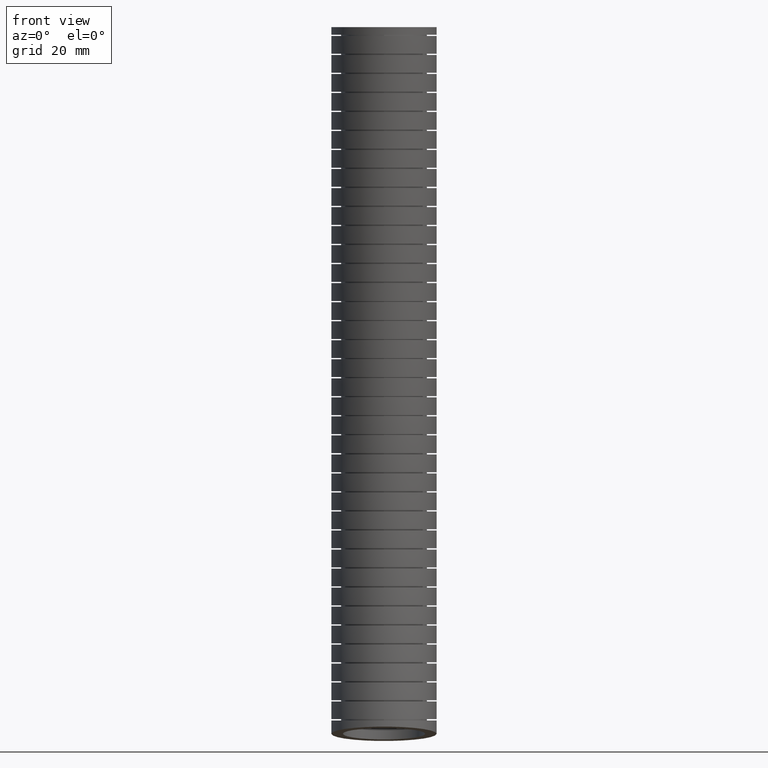
[diagram: clean part render]
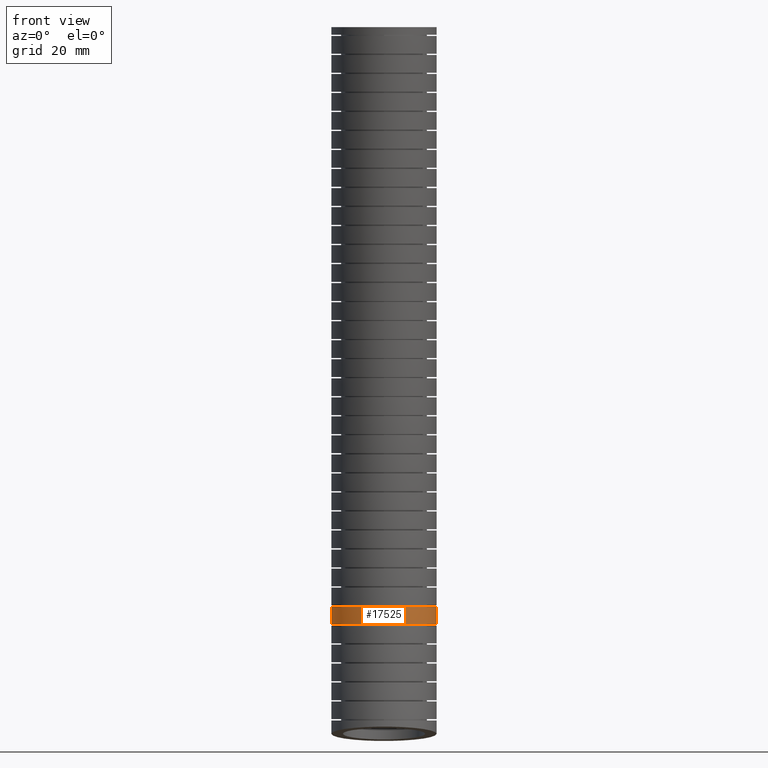
[diagram: same view with one face highlighted and labeled with its STEP entity id]
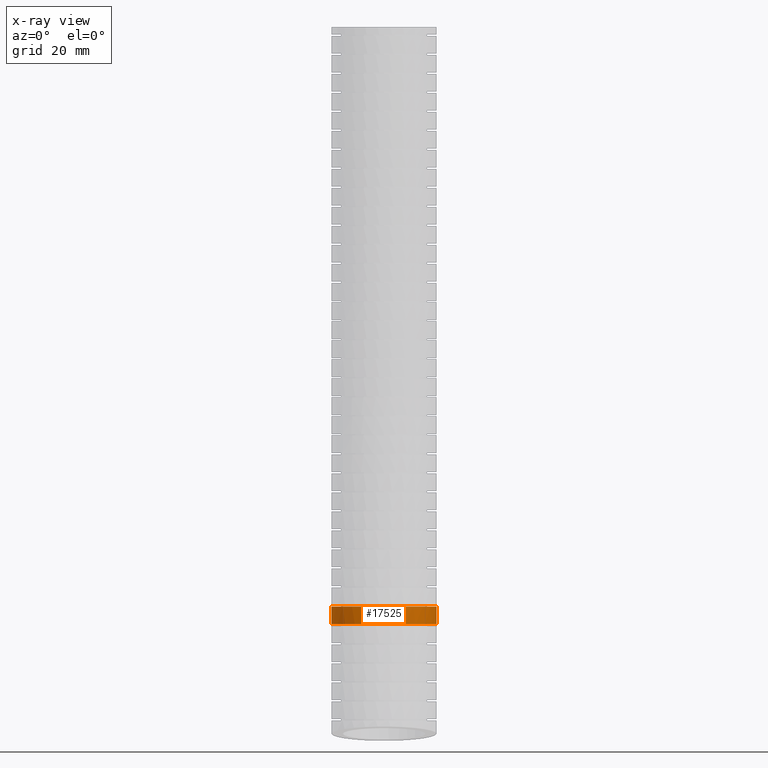
[diagram: x-ray of the same camera — body ghosted, the highlighted face saturated]
A machine part, front view. The second image highlights one B-rep face of the part: STEP entity #17525.
The next image is the same camera in x-ray: the body ghosted, the highlighted face saturated — about 0% of this face is hidden behind the body in this view.
In plain terms, the highlighted face is a freeform B-spline surface patch.
Its self-contained STEP definition (entity closure, byte-faithful):
#16746 = EDGE_CURVE ( 'NONE', #17440, #16922, #16773, .T. ) ;
#16752 = EDGE_CURVE ( 'NONE', #17075, #16922, #16767, .T. ) ;
#16764 = CARTESIAN_POINT ( 'NONE',  ( -0.4150000000000000900, 0.02722070567001201900, -4.707395241627940800 ) ) ;
#16765 = CARTESIAN_POINT ( 'NONE',  ( -0.4150000000000000900, 0.04081701023468725700, -4.707395241627942500 ) ) ;
#16766 = CARTESIAN_POINT ( 'NONE',  ( -0.4150000000000000900, 0.04081701023468725700, -4.707395241627942500 ) ) ;
#16767 = B_SPLINE_CURVE_WITH_KNOTS ( 'NONE', 3,
 ( #16765, #16764, #16830, #16829, #16828, #16827, #16826, #16825, #16824, #16823, #16822, #16821, #16820, #16819, #16818, #16817, #16816, #16815, #16814, #16813, #16812, #16811, #16810, #16809, #16808, #16807, #16806, #16805, #16804, #16803, #16802, #16801, #16800, #16798, #16797, #16796, #16795, #16794, #16793, #16792, #16791, #16790, #16789, #16788, #16787, #16786, #16785, #16784 ),
 .UNSPECIFIED., .F., .F.,
 ( 4, 2, 2, 2, 2, 2, 2, 2, 2, 2, 2, 1, 2, 2, 2, 2, 2, 2, 2, 2, 2, 2, 1, 2, 4 ),
 ( 0.03331670428760088300, 0.03435795259530502500, 0.03539920090300915900, 0.03748169751841744200, 0.03956419413382572500, 0.04060544244152986000, 0.04164669074923400100, 0.04372918736464229100, 0.04581168398005057400, 0.04789418059545885000, 0.04893542890316299200, 0.04997667721086713300, 0.05101792551857127500, 0.05205917382627540900, 0.05414167044168369900, 0.05518291874938784100, 0.05622416705709197500, 0.05830666367250025200, 0.05934791198020439300, 0.06038916028790852800, 0.06247165690331681100, 0.06351290521102094500, 0.06455415351872509400, 0.06559540182642922800, 0.06663665013413336300 ),
 .UNSPECIFIED. ) ;
#16768 = CARTESIAN_POINT ( 'NONE',  ( 0.4150000000000000900, 0.04081701025929175600, -4.707395241436215000 ) ) ;
#16769 = CARTESIAN_POINT ( 'NONE',  ( 0.4150000000000000900, 0.04081701025929175600, -4.707395241436215000 ) ) ;
#16770 = CARTESIAN_POINT ( 'NONE',  ( 0.4150000000000000900, 0.04380503960033631900, -4.660827499190193500 ) ) ;
#16771 = CARTESIAN_POINT ( 'NONE',  ( 0.4150000000000000900, 0.04664156438956276000, -4.614253428303644700 ) ) ;
#16772 = CARTESIAN_POINT ( 'NONE',  ( 0.4150000000000000900, 0.04933109456026307800, -4.567673217165008700 ) ) ;
#16773 = B_SPLINE_CURVE_WITH_KNOTS ( 'NONE', 3,
 ( #16772, #16771, #16770, #16769 ),
 .UNSPECIFIED., .F., .F.,
 ( 4, 4 ),
 ( 0.8194947224877287000, 0.8446376607462574600 ),
 .UNSPECIFIED. ) ;
#16784 = CARTESIAN_POINT ( 'NONE',  ( 0.4150000000000000900, 0.04081701025929175600, -4.707395241436215000 ) ) ;
#16785 = CARTESIAN_POINT ( 'NONE',  ( 0.4150000000000002000, 0.02710499446350850600, -4.707395241436215900 ) ) ;
#16786 = CARTESIAN_POINT ( 'NONE',  ( 0.4143165437554263100, 0.01338410576498883100, -4.707395241627943400 ) ) ;
#16787 = CARTESIAN_POINT ( 'NONE',  ( 0.4116329066317014300, -0.01369555393711079400, -4.707395241627943400 ) ) ;
#16788 = CARTESIAN_POINT ( 'NONE',  ( 0.4076373896446693900, -0.04049150982764403900, -4.707395241627936300 ) ) ;
#16789 = CARTESIAN_POINT ( 'NONE',  ( 0.4010678163226993900, -0.06673080682445253800, -4.707395241627944300 ) ) ;
#16790 = CARTESIAN_POINT ( 'NONE',  ( 0.3931987917848692200, -0.09268908779746579100, -4.707395241627945200 ) ) ;
#16791 = CARTESIAN_POINT ( 'NONE',  ( 0.3885977988833834700, -0.1055677975372303300, -4.707395241627940800 ) ) ;
#16792 = CARTESIAN_POINT ( 'NONE',  ( 0.3728804056647402900, -0.1435008583150359500, -4.707395241627940800 ) ) ;
#16793 = CARTESIAN_POINT ( 'NONE',  ( 0.3600895573165869300, -0.1673711514206137300, -4.707395241627942500 ) ) ;
#16794 = CARTESIAN_POINT ( 'NONE',  ( 0.3375530684191198100, -0.2011217513192723500, -4.707395241627942500 ) ) ;
#16795 = CARTESIAN_POINT ( 'NONE',  ( 0.3294784510129268300, -0.2120269724490107500, -4.707395241627942500 ) ) ;
#16796 = CARTESIAN_POINT ( 'NONE',  ( 0.3121746425241153600, -0.2331292622699205100, -4.707395241627941700 ) ) ;
#16797 = CARTESIAN_POINT ( 'NONE',  ( 0.3029407689834010000, -0.2433164848990953000, -4.707395241627944300 ) ) ;
#16798 = CARTESIAN_POINT ( 'NONE',  ( 0.2741134331435121100, -0.2721388213077581300, -4.707395241627945200 ) ) ;
#16799 = ORIENTED_EDGE ( 'NONE', *, *, #16746, .F. ) ;
#16800 = CARTESIAN_POINT ( 'NONE',  ( 0.2532174829395305600, -0.2892936259063709200, -4.707395241627944300 ) ) ;
#16801 = CARTESIAN_POINT ( 'NONE',  ( 0.2193619528370025200, -0.3119418239876972600, -4.707395241627942500 ) ) ;
#16802 = CARTESIAN_POINT ( 'NONE',  ( 0.2075916502005595300, -0.3190061518216849600, -4.707395241627943400 ) ) ;
#16803 = CARTESIAN_POINT ( 'NONE',  ( 0.1834972992540061800, -0.3318859711662928100, -4.707395241627941700 ) ) ;
#16804 = CARTESIAN_POINT ( 'NONE',  ( 0.1712193606188991400, -0.3376862111018420500, -4.707395241627941700 ) ) ;
#16805 = CARTESIAN_POINT ( 'NONE',  ( 0.1337124507286304400, -0.3532211311476167700, -4.707395241627941700 ) ) ;
#16806 = CARTESIAN_POINT ( 'NONE',  ( 0.1078168497238341400, -0.3611079301962410400, -4.707395241627943400 ) ) ;
#16807 = CARTESIAN_POINT ( 'NONE',  ( 0.06759527642263112000, -0.3691178708836377900, -4.707395241627943400 ) ) ;
#16808 = CARTESIAN_POINT ( 'NONE',  ( 0.05403288321307180700, -0.3711242071582415100, -4.707395241627943400 ) ) ;
#16809 = CARTESIAN_POINT ( 'NONE',  ( 0.02702024113260861500, -0.3737765257952890300, -4.707395241627946100 ) ) ;
#16810 = CARTESIAN_POINT ( 'NONE',  ( -4.202475531460690500E-006, -0.3750945538268633000, -4.707395241627947000 ) ) ;
#16811 = CARTESIAN_POINT ( 'NONE',  ( -0.02705197288449128300, -0.3737752342170245200, -4.707395241627943400 ) ) ;
#16812 = CARTESIAN_POINT ( 'NONE',  ( -0.05411160654095361500, -0.3711146459066699300, -4.707395241627943400 ) ) ;
#16813 = CARTESIAN_POINT ( 'NONE',  ( -0.06772164466586964900, -0.3690958297575522300, -4.707395241627941700 ) ) ;
#16814 = CARTESIAN_POINT ( 'NONE',  ( -0.1078392918606110600, -0.3610971796376662400, -4.707395241627940800 ) ) ;
#16815 = CARTESIAN_POINT ( 'NONE',  ( -0.1337169904833151500, -0.3532213612287966000, -4.707395241627942500 ) ) ;
#16816 = CARTESIAN_POINT ( 'NONE',  ( -0.1837723251406569700, -0.3324848084149223400, -4.707395241627942500 ) ) ;
#16817 = CARTESIAN_POINT ( 'NONE',  ( -0.2081495075148933900, -0.3194460635672153900, -4.707395241627943400 ) ) ;
#16818 = CARTESIAN_POINT ( 'NONE',  ( -0.2532187200150217700, -0.2892892975667433200, -4.707395241627944300 ) ) ;
#16819 = CARTESIAN_POINT ( 'NONE',  ( -0.2741219599552196000, -0.2721358188926998300, -4.707395241627942500 ) ) ;
#16820 = CARTESIAN_POINT ( 'NONE',  ( -0.3029997377236192100, -0.2432547558474783800, -4.707395241627943400 ) ) ;
#16821 = CARTESIAN_POINT ( 'NONE',  ( -0.3122429244307228200, -0.2330498305152264000, -4.707395241627945200 ) ) ;
#16822 = CARTESIAN_POINT ( 'NONE',  ( -0.3295045690929376300, -0.2119912607577111000, -4.707395241627946100 ) ) ;
#16823 = CARTESIAN_POINT ( 'NONE',  ( -0.3375679052941782900, -0.2011006187159200000, -4.707395241627947000 ) ) ;
#16824 = CARTESIAN_POINT ( 'NONE',  ( -0.3600907937441436600, -0.1673671233688661400, -4.707395241627947000 ) ) ;
#16825 = CARTESIAN_POINT ( 'NONE',  ( -0.3729192300031485300, -0.1434257950490715200, -4.707395241627945200 ) ) ;
#16826 = CARTESIAN_POINT ( 'NONE',  ( -0.3938810521548429300, -0.09279824645249111500, -4.707395241627944300 ) ) ;
#16827 = CARTESIAN_POINT ( 'NONE',  ( -0.4017132877038631600, -0.06686541972093290600, -4.707395241627943400 ) ) ;
#16828 = CARTESIAN_POINT ( 'NONE',  ( -0.4096387625482109700, -0.02707269070784970600, -4.707395241627942500 ) ) ;
#16829 = CARTESIAN_POINT ( 'NONE',  ( -0.4116387415283290200, -0.01365843449717216300, -4.707395241627941700 ) ) ;
#16830 = CARTESIAN_POINT ( 'NONE',  ( -0.4143236265104196000, 0.01347743876125154200, -4.707395241627943400 ) ) ;
#16831 = CARTESIAN_POINT ( 'NONE',  ( -0.3938373692053467900, -0.08431940692384036500, -4.567673217164061900 ) ) ;
#16832 = CARTESIAN_POINT ( 'NONE',  ( -0.3782148210115211500, -0.1220489718715152500, -4.567673217164061900 ) ) ;
#16833 = CARTESIAN_POINT ( 'NONE',  ( -0.3723267518479991800, -0.1344938138334204300, -4.567673217164061900 ) ) ;
#16834 = CARTESIAN_POINT ( 'NONE',  ( -0.3594812633170510500, -0.1585018805922859500, -4.567673217164062800 ) ) ;
#16835 = CARTESIAN_POINT ( 'NONE',  ( -0.3525074004708712000, -0.1701196804039062600, -4.567673217164060200 ) ) ;
#16836 = CARTESIAN_POINT ( 'NONE',  ( -0.3299666373017057200, -0.2038383338577966200, -4.567673217164061100 ) ) ;
#16837 = CARTESIAN_POINT ( 'NONE',  ( -0.3127611069755841800, -0.2248510151402785300, -4.567673217164061100 ) ) ;
#16838 = CARTESIAN_POINT ( 'NONE',  ( -0.2740117222093747500, -0.2635898384651738600, -4.567673217164061100 ) ) ;
#16839 = CARTESIAN_POINT ( 'NONE',  ( -0.2530504962704760400, -0.2807472633977453100, -4.567673217164061900 ) ) ;
#16840 = CARTESIAN_POINT ( 'NONE',  ( -0.2193183384964688100, -0.3032901781134003100, -4.567673217164061900 ) ) ;
#16841 = CARTESIAN_POINT ( 'NONE',  ( -0.2076897496974254000, -0.3102683525437853800, -4.567673217164056600 ) ) ;
#16842 = CARTESIAN_POINT ( 'NONE',  ( -0.1836445936928049200, -0.3231260812257920600, -4.567673217164056600 ) ) ;
#16843 = CARTESIAN_POINT ( 'NONE',  ( -0.1712055648640167000, -0.3290056015825317300, -4.567673217164061900 ) ) ;
#16844 = CARTESIAN_POINT ( 'NONE',  ( -0.1335197347688712700, -0.3445986701146846500, -4.567673217164062800 ) ) ;
#16845 = CARTESIAN_POINT ( 'NONE',  ( -0.1076477072961974900, -0.3524392041563313400, -4.567673217164062800 ) ) ;
#16846 = CARTESIAN_POINT ( 'NONE',  ( -0.06772368962582325800, -0.3603890286236210400, -4.567673217164062800 ) ) ;
#16847 = CARTESIAN_POINT ( 'NONE',  ( -0.05416676910074261900, -0.3624046585382111900, -4.567673217164063700 ) ) ;
#16848 = CARTESIAN_POINT ( 'NONE',  ( -0.02695628316189956400, -0.3650774370856464900, -4.567673217164062800 ) ) ;
#16849 = CARTESIAN_POINT ( 'NONE',  ( -0.01338681571845266200, -0.3657331661119325200, -4.567673217164059300 ) ) ;
#16850 = CARTESIAN_POINT ( 'NONE',  ( 0.02721743030434071700, -0.3657186895776152200, -4.567673217164059300 ) ) ;
#16851 = CARTESIAN_POINT ( 'NONE',  ( 0.05414904538502685700, -0.3630857094494626700, -4.567673217164057500 ) ) ;
#16852 = CARTESIAN_POINT ( 'NONE',  ( 0.09433397865779376300, -0.3550934460788191500, -4.567673217164059300 ) ) ;
#16853 = CARTESIAN_POINT ( 'NONE',  ( 0.1076501282178003700, -0.3517506029426243400, -4.567673217164061900 ) ) ;
#16854 = CARTESIAN_POINT ( 'NONE',  ( 0.1336318827204471500, -0.3438554079174773200, -4.567673217164061900 ) ) ;
#16855 = CARTESIAN_POINT ( 'NONE',  ( 0.1591059563654014000, -0.3347248856477336700, -4.567673217164062800 ) ) ;
#16856 = CARTESIAN_POINT ( 'NONE',  ( 0.1835783446077924900, -0.3231569871217303000, -4.567673217164061100 ) ) ;
#16857 = CARTESIAN_POINT ( 'NONE',  ( 0.2075422146436530800, -0.3103517238509576600, -4.567673217164061900 ) ) ;
#16858 = CARTESIAN_POINT ( 'NONE',  ( 0.2193327263520887500, -0.3032859276285092000, -4.567673217164061100 ) ) ;
#16859 = CARTESIAN_POINT ( 'NONE',  ( 0.2533617369438448400, -0.2805284535017774600, -4.567673217164061100 ) ) ;
#16860 = CARTESIAN_POINT ( 'NONE',  ( 0.2742580206025478900, -0.2633462173545831300, -4.567673217164062800 ) ) ;
#16861 = CARTESIAN_POINT ( 'NONE',  ( 0.3029806399369364700, -0.2346275093141553800, -4.567673217164062800 ) ) ;
#16862 = CARTESIAN_POINT ( 'NONE',  ( 0.3121147528037359100, -0.2245602026907090300, -4.567673217164060200 ) ) ;
#16863 = CARTESIAN_POINT ( 'NONE',  ( 0.3294744428270702800, -0.2034049346098345500, -4.567673217164060200 ) ) ;
#16864 = CARTESIAN_POINT ( 'NONE',  ( 0.3376164230239433500, -0.1924110267984491500, -4.567673217164064600 ) ) ;
#16865 = CARTESIAN_POINT ( 'NONE',  ( 0.3602062199381827500, -0.1585705868542915700, -4.567673217164065500 ) ) ;
#16866 = CARTESIAN_POINT ( 'NONE',  ( 0.3729547895900752200, -0.1347293963598865900, -4.567673217164062800 ) ) ;
#16867 = CARTESIAN_POINT ( 'NONE',  ( 0.3885794799262982100, -0.09702896205529268300, -4.567673217164061900 ) ) ;
#16868 = CARTESIAN_POINT ( 'NONE',  ( 0.3932167839578282800, -0.08406853345634990300, -4.567673217164061900 ) ) ;
#16869 = CARTESIAN_POINT ( 'NONE',  ( 0.4011172515382046600, -0.05799212926896183500, -4.567673217164061100 ) ) ;
#16870 = CARTESIAN_POINT ( 'NONE',  ( 0.4044027328172684600, -0.04484071829845775300, -4.567673217164061100 ) ) ;
#16871 = CARTESIAN_POINT ( 'NONE',  ( 0.4123093996266069000, -0.005054433888591461400, -4.567673217164060200 ) ) ;
#16872 = CARTESIAN_POINT ( 'NONE',  ( 0.4150000000000000400, 0.02190922262949446600, -4.567673217165007800 ) ) ;
#16873 = CARTESIAN_POINT ( 'NONE',  ( 0.4150000000000000900, 0.04933109456026307800, -4.567673217165008700 ) ) ;
#16874 = B_SPLINE_CURVE_WITH_KNOTS ( 'NONE', 3,
 ( #16873, #16872, #16871, #16870, #16869, #16868, #16867, #16866, #16865, #16864, #16863, #16862, #16861, #16860, #16859, #16858, #16857, #16856, #16855, #16854, #16853, #16852, #16851, #16850, #16849, #16848, #16847, #16846, #16845, #16844, #16843, #16842, #16841, #16840, #16839, #16838, #16837, #16836, #16835, #16834, #16833, #16832, #16831, #16903, #16902, #16901, #16900 ),
 .UNSPECIFIED., .F., .F.,
 ( 4, 2, 2, 2, 2, 2, 2, 2, 2, 1, 2, 2, 2, 2, 2, 2, 2, 2, 2, 2, 2, 2, 2, 4 ),
 ( 0.0000000000000000000, 0.002059888800251307200, 0.003089833200376960800, 0.004119777600502615300, 0.006179666400753925200, 0.007209610800879580500, 0.008239555201005237600, 0.01029944400125654500, 0.01132938840138220300, 0.01235933280150785700, 0.01338927720163351200, 0.01441922160175916600, 0.01647911040201047900, 0.01750905480213613800, 0.01853899920226179100, 0.02059888800251310400, 0.02162883240263876000, 0.02265877680276441900, 0.02471866560301572800, 0.02677855440326703700, 0.02780849880339269400, 0.02883844320351834600, 0.03089833200376965500, 0.03295822080402095700 ),
 .UNSPECIFIED. ) ;
#16891 = CARTESIAN_POINT ( 'NONE',  ( -0.4150000000000000900, 0.04081701023468725700, -4.707395241627942500 ) ) ;
#16892 = CARTESIAN_POINT ( 'NONE',  ( -0.4150000000000000900, 0.04380503959253912600, -4.660827499318236800 ) ) ;
#16893 = CARTESIAN_POINT ( 'NONE',  ( -0.4150000000000000900, 0.04664156438589514600, -4.614253428367200100 ) ) ;
#16894 = CARTESIAN_POINT ( 'NONE',  ( -0.4150000000000000900, 0.04933109456037250400, -4.567673217164062800 ) ) ;
#16896 = FACE_OUTER_BOUND ( 'NONE', #17357, .T. ) ;
#16897 = CARTESIAN_POINT ( 'NONE',  ( -0.4150000000000000900, 0.04933109456037250400, -4.567673217164062800 ) ) ;
#16898 = B_SPLINE_CURVE_WITH_KNOTS ( 'NONE', 3,
 ( #16894, #16893, #16892, #16891 ),
 .UNSPECIFIED., .F., .F.,
 ( 4, 4 ),
 ( 0.8194947224875578400, 0.8446376607809048500 ),
 .UNSPECIFIED. ) ;
#16899 = CARTESIAN_POINT ( 'NONE',  ( 0.4150000000000000900, 0.04933109456026307800, -4.567673217165008700 ) ) ;
#16900 = CARTESIAN_POINT ( 'NONE',  ( -0.4150000000000000900, 0.04933109456037250400, -4.567673217164062800 ) ) ;
#16901 = CARTESIAN_POINT ( 'NONE',  ( -0.4150000000000003100, 0.02224401102457760800, -4.567673217164061900 ) ) ;
#16902 = CARTESIAN_POINT ( 'NONE',  ( -0.4122862776969992100, -0.005264397556549656700, -4.567673217164063700 ) ) ;
#16903 = CARTESIAN_POINT ( 'NONE',  ( -0.4016806419470672600, -0.05844366895542869900, -4.567673217164062800 ) ) ;
#16904 = CARTESIAN_POINT ( 'NONE',  ( 0.4150000000000002000, -0.8352887892759974800, -5.273085195688222100 ) ) ;
#16905 = CARTESIAN_POINT ( 'NONE',  ( 0.4150000000000000400, -0.7627651118616902700, -4.486822042548080700 ) ) ;
#16906 = CARTESIAN_POINT ( 'NONE',  ( 0.4150000000000000400, -0.7092540105308221500, -2.690209918970475100 ) ) ;
#16907 = CARTESIAN_POINT ( 'NONE',  ( 0.4150000000000000900, -0.7836011148550242600, -1.033763039210906500 ) ) ;
#16908 = CARTESIAN_POINT ( 'NONE',  ( 0.4150000000000000900, -0.8300000000000001800, 0.0000000000000000000 ) ) ;
#16909 = CARTESIAN_POINT ( 'NONE',  ( 0.4150000000000000400, -0.03000000000000001600, -5.569999999999998500 ) ) ;
#16910 = CARTESIAN_POINT ( 'NONE',  ( 0.4150000000000000900, -0.01243844818931303500, -5.380037381098891700 ) ) ;
#16911 = CARTESIAN_POINT ( 'NONE',  ( 0.4150000000000000900, 0.06281132015026588700, -4.566063580857106200 ) ) ;
#16912 = CARTESIAN_POINT ( 'NONE',  ( 0.4149999999999999200, 0.1218071073635319700, -2.711443563840852700 ) ) ;
#16913 = CARTESIAN_POINT ( 'NONE',  ( 0.4150000000000000900, 0.04680663936954134600, -1.041922460934817000 ) ) ;
#16914 = CARTESIAN_POINT ( 'NONE',  ( 0.4150000000000000900, 0.0000000000000000000, 0.0000000000000000000 ) ) ;
#16917 =( BOUNDED_SURFACE ( )  B_SPLINE_SURFACE ( 3, 3, ( 
 ( #16914, #16913, #16912, #16911, #16910, #16909 ),
 ( #16908, #16907, #16906, #16905, #16904, #16950 ),
 ( #16949, #16948, #16947, #16946, #16945, #16944 ),
 ( #16943, #16942, #16941, #16940, #16939, #16938 ),
 ( #16937, #16936, #16935, #16934, #16933, #16932 ),
 ( #16931, #16930, #16929, #16928, #16927, #16926 ),
 ( #16925, #16924, #16923, #16921, #16920, #16919 ) ),
 .UNSPECIFIED., .F., .F., .F. ) 
 B_SPLINE_SURFACE_WITH_KNOTS ( ( 4, 3, 4 ),
 ( 4, 1, 1, 4 ),
 ( 0.0000000000000000000, 0.5000000000000000000, 1.000000000000000000 ),
 ( 0.0000000000000000000, 0.5600000000000000500, 0.8973141982067990300, 1.000000000000000000 ),
 .UNSPECIFIED. ) 
 GEOMETRIC_REPRESENTATION_ITEM ( )  RATIONAL_B_SPLINE_SURFACE ( (
 ( 1.000000000000000000, 1.000000000000000000, 1.000000000000000000, 1.000000000000000000, 1.000000000000000000, 1.000000000000000000),
 ( 0.3333333333333333100, 0.3333333333333333100, 0.3333333333333333100, 0.3333333333333333100, 0.3333333333333332600, 0.3333333333333333100),
 ( 0.3333333333333333100, 0.3333333333333333100, 0.3333333333333333100, 0.3333333333333333100, 0.3333333333333332600, 0.3333333333333333100),
 ( 1.000000000000000000, 1.000000000000000000, 1.000000000000000000, 1.000000000000000000, 1.000000000000000000, 1.000000000000000000),
 ( 0.3333333333333333100, 0.3333333333333333100, 0.3333333333333333100, 0.3333333333333333100, 0.3333333333333332600, 0.3333333333333333100),
 ( 0.3333333333333333100, 0.3333333333333333100, 0.3333333333333333100, 0.3333333333333333100, 0.3333333333333332600, 0.3333333333333333100),
 ( 1.000000000000000000, 1.000000000000000000, 1.000000000000000000, 1.000000000000000000, 1.000000000000000000, 1.000000000000000000) ) ) 
 REPRESENTATION_ITEM ( '' )  SURFACE ( )  );
#16919 = CARTESIAN_POINT ( 'NONE',  ( 0.4150000000000000400, -0.03000000000000001600, -5.569999999999998500 ) ) ;
#16920 = CARTESIAN_POINT ( 'NONE',  ( 0.4150000000000000900, -0.01243844818931303500, -5.380037381098891700 ) ) ;
#16921 = CARTESIAN_POINT ( 'NONE',  ( 0.4150000000000000900, 0.06281132015026588700, -4.566063580857106200 ) ) ;
#16922 = VERTEX_POINT ( 'NONE', #16768 ) ;
#16923 = CARTESIAN_POINT ( 'NONE',  ( 0.4149999999999999200, 0.1218071073635319700, -2.711443563840852700 ) ) ;
#16924 = CARTESIAN_POINT ( 'NONE',  ( 0.4150000000000000900, 0.04680663936954134600, -1.041922460934817000 ) ) ;
#16925 = CARTESIAN_POINT ( 'NONE',  ( 0.4150000000000000900, 0.0000000000000000000, 0.0000000000000000000 ) ) ;
#16926 = CARTESIAN_POINT ( 'NONE',  ( 0.4150000000000000400, 0.7922141346493595200, -5.683419208173947200 ) ) ;
#16927 = CARTESIAN_POINT ( 'NONE',  ( 0.4150000000000002000, 0.8104118928973711400, -5.486989566509566700 ) ) ;
#16928 = CARTESIAN_POINT ( 'NONE',  ( 0.4150000000000000400, 0.8883877521622221000, -4.645305119166129900 ) ) ;
#16929 = CARTESIAN_POINT ( 'NONE',  ( 0.4150000000000000400, 0.9528682252578860600, -2.732677208711230800 ) ) ;
#16930 = CARTESIAN_POINT ( 'NONE',  ( 0.4150000000000000900, 0.8772143935941071300, -1.050081882658727000 ) ) ;
#16931 = CARTESIAN_POINT ( 'NONE',  ( 0.4150000000000000900, 0.8300000000000001800, 0.0000000000000000000 ) ) ;
#16932 = CARTESIAN_POINT ( 'NONE',  ( -0.4149999999999999200, 0.7922141346493595200, -5.683419208173947200 ) ) ;
#16933 = CARTESIAN_POINT ( 'NONE',  ( -0.4150000000000000400, 0.8104118928973711400, -5.486989566509566700 ) ) ;
#16934 = CARTESIAN_POINT ( 'NONE',  ( -0.4149999999999999200, 0.8883877521622221000, -4.645305119166129900 ) ) ;
#16935 = CARTESIAN_POINT ( 'NONE',  ( -0.4149999999999999200, 0.9528682252578860600, -2.732677208711230800 ) ) ;
#16936 = CARTESIAN_POINT ( 'NONE',  ( -0.4149999999999999200, 0.8772143935941071300, -1.050081882658727000 ) ) ;
#16937 = CARTESIAN_POINT ( 'NONE',  ( -0.4150000000000000400, 0.8300000000000001800, 0.0000000000000000000 ) ) ;
#16938 = CARTESIAN_POINT ( 'NONE',  ( -0.4150000000000000400, -0.02999999999999996800, -5.569999999999998500 ) ) ;
#16939 = CARTESIAN_POINT ( 'NONE',  ( -0.4150000000000000900, -0.01243844818931298000, -5.380037381098891700 ) ) ;
#16940 = CARTESIAN_POINT ( 'NONE',  ( -0.4150000000000000900, 0.06281132015026594200, -4.566063580857106200 ) ) ;
#16941 = CARTESIAN_POINT ( 'NONE',  ( -0.4149999999999999200, 0.1218071073635320100, -2.711443563840852700 ) ) ;
#16942 = CARTESIAN_POINT ( 'NONE',  ( -0.4150000000000000900, 0.04680663936954139500, -1.041922460934817000 ) ) ;
#16943 = CARTESIAN_POINT ( 'NONE',  ( -0.4150000000000000900, 5.082284216461516900E-017, 0.0000000000000000000 ) ) ;
#16944 = CARTESIAN_POINT ( 'NONE',  ( -0.4150000000000000900, -0.8522141346493592500, -5.456580791826050700 ) ) ;
#16945 = CARTESIAN_POINT ( 'NONE',  ( -0.4150000000000002000, -0.8352887892759974800, -5.273085195688222100 ) ) ;
#16946 = CARTESIAN_POINT ( 'NONE',  ( -0.4150000000000000900, -0.7627651118616902700, -4.486822042548080700 ) ) ;
#16947 = CARTESIAN_POINT ( 'NONE',  ( -0.4150000000000000400, -0.7092540105308221500, -2.690209918970475100 ) ) ;
#16948 = CARTESIAN_POINT ( 'NONE',  ( -0.4150000000000000900, -0.7836011148550242600, -1.033763039210906500 ) ) ;
#16949 = CARTESIAN_POINT ( 'NONE',  ( -0.4150000000000000900, -0.8300000000000001800, 0.0000000000000000000 ) ) ;
#16950 = CARTESIAN_POINT ( 'NONE',  ( 0.4150000000000000400, -0.8522141346493592500, -5.456580791826050700 ) ) ;
#17075 = VERTEX_POINT ( 'NONE', #16766 ) ;
#17154 = ORIENTED_EDGE ( 'NONE', *, *, #16752, .T. ) ;
#17278 = EDGE_CURVE ( 'NONE', #17440, #17410, #16874, .T. ) ;
#17323 = ORIENTED_EDGE ( 'NONE', *, *, #17278, .T. ) ;
#17357 = EDGE_LOOP ( 'NONE', ( #17323, #17484, #17154, #16799 ) ) ;
#17404 = EDGE_CURVE ( 'NONE', #17410, #17075, #16898, .T. ) ;
#17410 = VERTEX_POINT ( 'NONE', #16897 ) ;
#17440 = VERTEX_POINT ( 'NONE', #16899 ) ;
#17484 = ORIENTED_EDGE ( 'NONE', *, *, #17404, .T. ) ;
#17525 = ADVANCED_FACE ( 'NONE', ( #16896 ), #16917, .T. ) ;